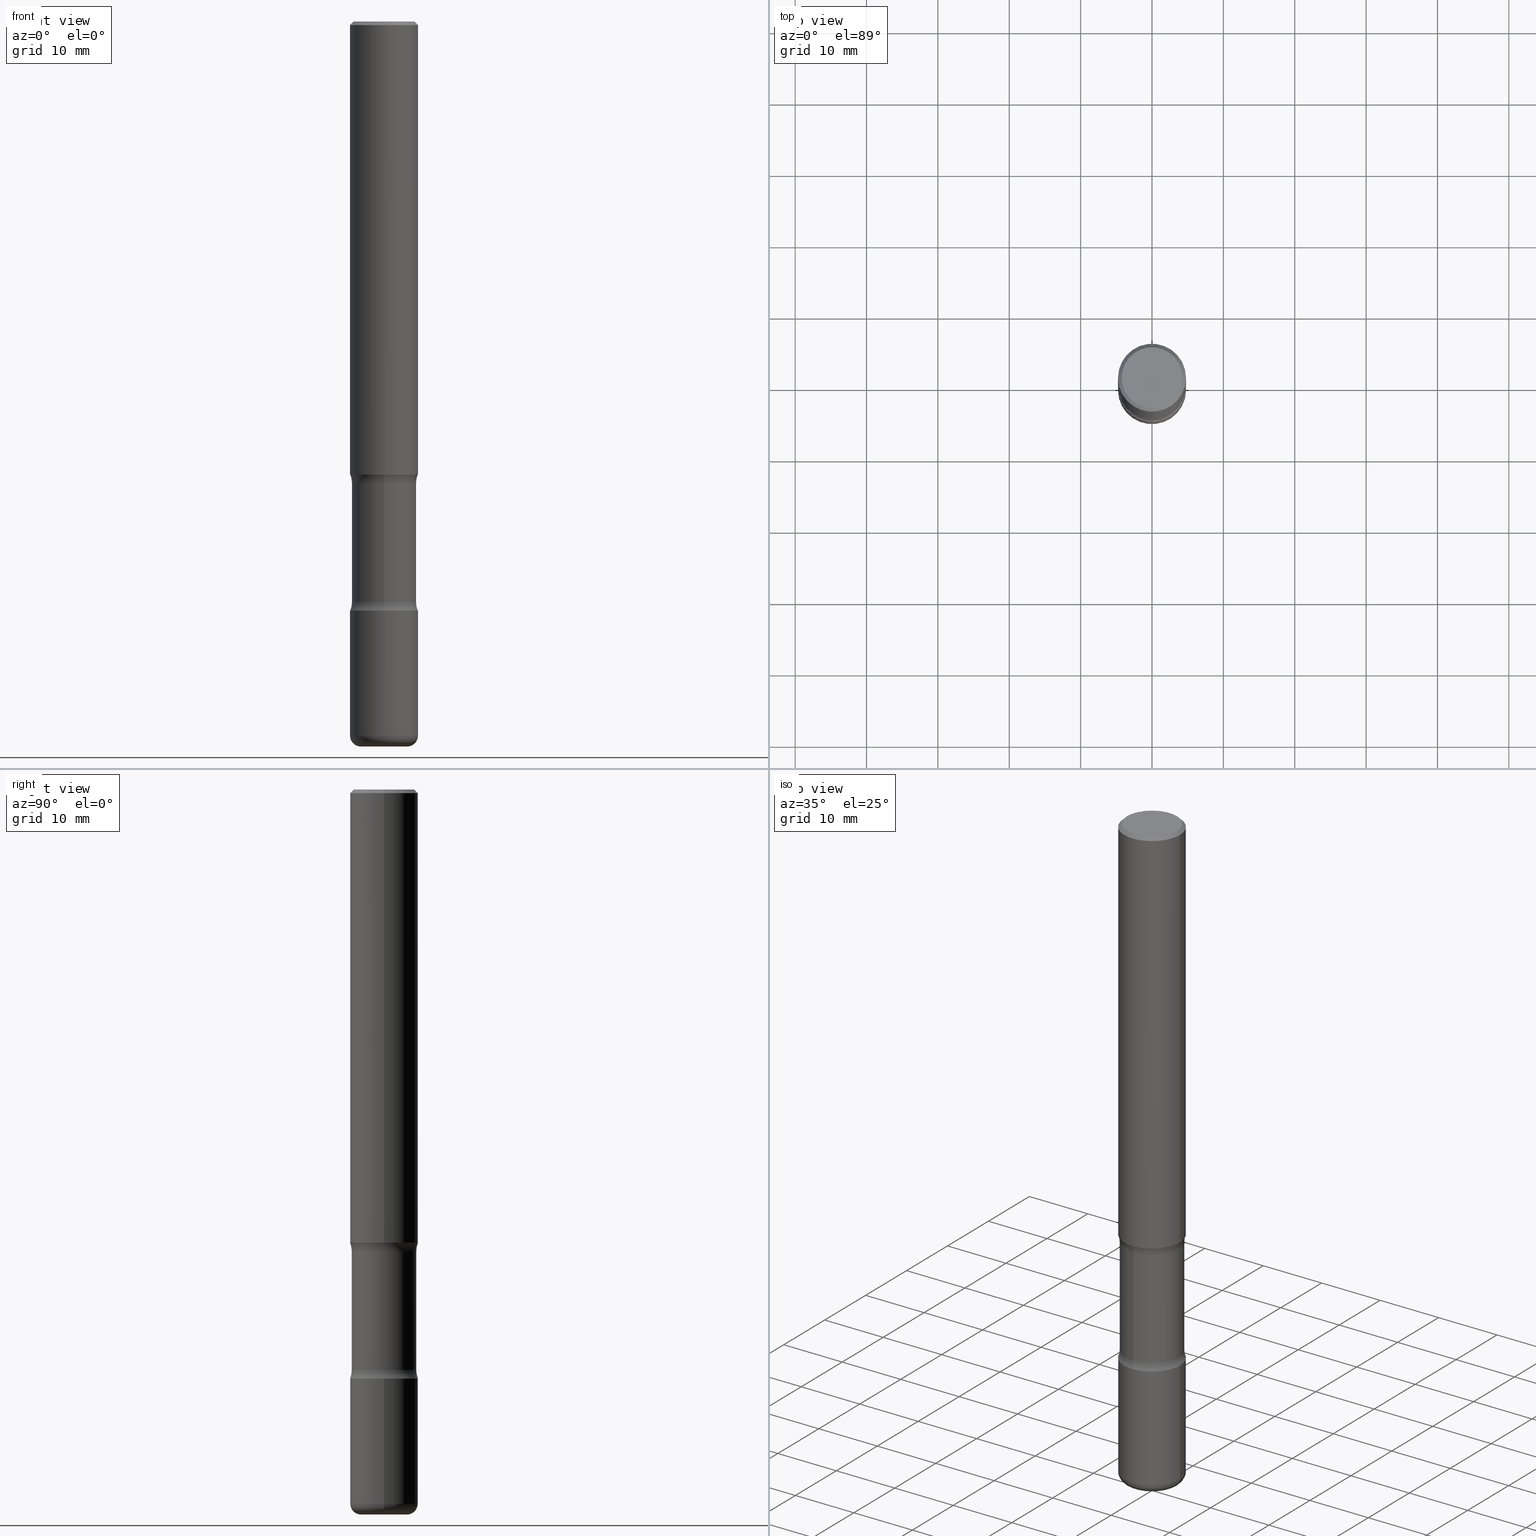
[diagram: canonical four-view strip — front | top / right | iso, engineering-drawing reading convention]
A machine part, canonical four-view strip (front | top / right | iso — engineering-drawing reading convention). The complete STEP part file that produces these views, byte-faithful:
ISO-10303-21;
HEADER;
FILE_DESCRIPTION (( 'STEP AP203' ),
    '1' );
FILE_NAME ('37849.STEP',
    '2024-03-02T00:46:52',
    ( '' ),
    ( '' ),
    'SwSTEP 2.0',
    'SolidWorks 2023',
    '' );
FILE_SCHEMA (( 'CONFIG_CONTROL_DESIGN' ));
ENDSEC;

DATA;
#1 = CARTESIAN_POINT ( 'NONE',  ( -1.222026205852954821E-15, -0.1781250000000138001, -3.999999999999999556 ) ) ;
#2 = ORIENTED_EDGE ( 'NONE', *, *, #150, .T. ) ;
#3 = DIRECTION ( 'NONE',  ( -2.445468806185136597E-29, 3.491481338843145583E-15, 1.000000000000000000 ) ) ;
#4 = VERTEX_POINT ( 'NONE', #449 ) ;
#5 = CIRCLE ( 'NONE', #536, 0.1275000000000001132 ) ;
#6 = CIRCLE ( 'NONE', #519, 0.1250000000000000278 ) ;
#7 = ORIENTED_EDGE ( 'NONE', *, *, #106, .T. ) ;
#8 = CARTESIAN_POINT ( 'NONE',  ( 6.113672015462842613E-29, -8.728703347107864943E-15, -2.500000000000000000 ) ) ;
#9 = DIRECTION ( 'NONE',  ( -2.438088387897960049E-29, 3.491481338843145188E-15, 1.000000000000000000 ) ) ;
#10 = TOROIDAL_SURFACE ( 'NONE', #323, 0.3031249999999999778, 0.1250000000000000278 ) ;
#11 = CALENDAR_DATE ( 2024, 1, 3 ) ;
#12 = CARTESIAN_POINT ( 'NONE',  ( 9.781875224740546387E-29, -1.396592535537258233E-14, -4.000000000000000000 ) ) ;
#13 = ADVANCED_BREP_SHAPE_REPRESENTATION ( '37849', ( #359, #166, #177, #530 ), #537 ) ;
#14 = ORIENTED_EDGE ( 'NONE', *, *, #226, .F. ) ;
#15 = ORIENTED_EDGE ( 'NONE', *, *, #52, .F. ) ;
#16 = ADVANCED_FACE ( 'NONE', ( #222 ), #442, .F. ) ;
#17 = CARTESIAN_POINT ( 'NONE',  ( 0.000000000000000000, 0.000000000000000000, 0.000000000000000000 ) ) ;
#18 = CLOSED_SHELL ( 'NONE', ( #397, #75, #247, #92, #528, #480, #372, #515 ) ) ;
#19 = DIRECTION ( 'NONE',  ( 6.982962677686265133E-15, 1.000000000000000000, -3.067338098149349483E-15 ) ) ;
#20 = CIRCLE ( 'NONE', #483, 0.1250000000000000278 ) ;
#21 = VERTEX_POINT ( 'NONE', #310 ) ;
#22 = EDGE_CURVE ( 'NONE', #390, #213, #371, .T. ) ;
#23 = CARTESIAN_POINT ( 'NONE',  ( 6.113672015462842613E-29, -8.728703347107864943E-15, -2.500000000000000000 ) ) ;
#24 = APPLICATION_CONTEXT ( 'configuration controlled 3d designs of mechanical parts and assemblies' ) ;
#25 = UNCERTAINTY_MEASURE_WITH_UNIT (LENGTH_MEASURE( 1.000000000000000082E-05 ), #549, 'distance_accuracy_value', 'NONE');
#26 = CARTESIAN_POINT ( 'NONE',  ( 2.116710561673727694E-15, 0.3031249999999888201, -3.202504112020092997 ) ) ;
#27 = DIRECTION ( 'NONE',  ( 1.000000000000000000, -6.982962677686266711E-15, 4.876176775795935793E-29 ) ) ;
#28 = ADVANCED_FACE ( 'NONE', ( #533 ), #300, .T. ) ;
#29 = ORIENTED_EDGE ( 'NONE', *, *, #293, .T. ) ;
#30 = DIRECTION ( 'NONE',  ( 1.000000000000000000, -6.982962677686265922E-15, 4.876176775795935793E-29 ) ) ;
#31 = CARTESIAN_POINT ( 'NONE',  ( -2.079588455574433343E-15, -0.3031250000000089706, -2.547495887979907891 ) ) ;
#32 = CIRCLE ( 'NONE', #316, 0.1875000000000001388 ) ;
#33 = AXIS2_PLACEMENT_3D ( 'NONE', #107, #379, #539 ) ;
#34 = EDGE_CURVE ( 'NONE', #21, #534, #315, .T. ) ;
#35 = DIRECTION ( 'NONE',  ( 2.438088387897960049E-29, -3.491481338843145188E-15, -1.000000000000000000 ) ) ;
#36 = DIRECTION ( 'NONE',  ( 1.000000000000000000, -6.982962677686265922E-15, 4.876176775795935793E-29 ) ) ;
#37 = EDGE_CURVE ( 'NONE', #463, #108, #360, .T. ) ;
#38 = APPLICATION_PROTOCOL_DEFINITION ( 'international standard', 'config_control_design', 1994, #24 ) ;
#39 = ORIENTED_EDGE ( 'NONE', *, *, #22, .T. ) ;
#40 = PERSON_AND_ORGANIZATION ( #116, #521 ) ;
#41 = CARTESIAN_POINT ( 'NONE',  ( 9.781875224740546387E-29, -1.396592535537258233E-14, -4.000000000000000000 ) ) ;
#42 = AXIS2_PLACEMENT_3D ( 'NONE', #318, #112, #19 ) ;
#43 = LOCAL_TIME ( 19, 46, 52.00000000000000000, #100 ) ;
#44 = DIRECTION ( 'NONE',  ( 6.860497997771529985E-15, 1.000000000000000000, 0.000000000000000000 ) ) ;
#45 = PRODUCT_DEFINITION ( 'UNKNOWN', '', #103, #181 ) ;
#46 = ORIENTED_EDGE ( 'NONE', *, *, #106, .F. ) ;
#47 = CARTESIAN_POINT ( 'NONE',  ( -2.079588455574416777E-15, -0.3031250000000111355, -3.202504112020090776 ) ) ;
#48 = ORIENTED_EDGE ( 'NONE', *, *, #34, .F. ) ;
#49 = COORDINATED_UNIVERSAL_TIME_OFFSET ( 5, 0, .BEHIND. ) ;
#50 = VERTEX_POINT ( 'NONE', #489 ) ;
#51 = ORIENTED_EDGE ( 'NONE', *, *, #143, .F. ) ;
#52 = EDGE_CURVE ( 'NONE', #265, #50, #198, .T. ) ;
#53 = CIRCLE ( 'NONE', #86, 0.1250000000000000278 ) ;
#54 = CC_DESIGN_SECURITY_CLASSIFICATION ( #142, ( #103 ) ) ;
#55 = PERSON_AND_ORGANIZATION ( #116, #521 ) ;
#56 = CARTESIAN_POINT ( 'NONE',  ( 1.243840226962943961E-15, 0.1781249999999887368, -3.202504112020092553 ) ) ;
#57 = EDGE_LOOP ( 'NONE', ( #254, #89 ) ) ;
#58 = CARTESIAN_POINT ( 'NONE',  ( 7.947773620101696182E-29, -1.134731435124022600E-14, -3.250000000000000444 ) ) ;
#59 = AXIS2_PLACEMENT_3D ( 'NONE', #62, #312, #221 ) ;
#60 = AXIS2_PLACEMENT_3D ( 'NONE', #144, #61, #482 ) ;
#61 = DIRECTION ( 'NONE',  ( 2.558681667686983511E-29, -3.329354077496592524E-15, -1.000000000000000000 ) ) ;
#62 = CARTESIAN_POINT ( 'NONE',  ( 4.890937612370289799E-31, -6.982962677686315028E-17, -0.02000000000000006981 ) ) ;
#63 = DIRECTION ( 'NONE',  ( 2.438088387897960049E-29, -3.491481338843145188E-15, -1.000000000000000000 ) ) ;
#64 = DIRECTION ( 'NONE',  ( 1.000000000000000000, -6.860497997771530774E-15, 4.842784365940769113E-29 ) ) ;
#65 = CIRCLE ( 'NONE', #421, 0.1875000000000001110 ) ;
#66 = LOCAL_TIME ( 19, 46, 52.00000000000000000, #294 ) ;
#67 = CARTESIAN_POINT ( 'NONE',  ( 0.1275000000000001132, -1.464676421644699397E-14, -3.939999999999999947 ) ) ;
#68 = CYLINDRICAL_SURFACE ( 'NONE', #353, 0.1875000000000001110 ) ;
#69 = ORIENTED_EDGE ( 'NONE', *, *, #500, .F. ) ;
#70 = DIRECTION ( 'NONE',  ( 1.000000000000000000, -6.982962677686273021E-15, 0.000000000000000000 ) ) ;
#71 = EDGE_CURVE ( 'NONE', #299, #238, #5, .T. ) ;
#72 = DIRECTION ( 'NONE',  ( 1.000000000000000000, -6.982962677686266711E-15, 4.876176775795935793E-29 ) ) ;
#73 = CARTESIAN_POINT ( 'NONE',  ( -0.1875000000000000833, -1.121960778359092137E-14, -3.250000000000000444 ) ) ;
#74 = VECTOR ( 'NONE', #512, 39.37007874015748143 ) ;
#75 = ADVANCED_FACE ( 'NONE', ( #535 ), #276, .F. ) ;
#76 = DIRECTION ( 'NONE',  ( -2.445468806185136597E-29, 3.491481338843145583E-15, 1.000000000000000000 ) ) ;
#77 = APPROVAL_STATUS ( 'not_yet_approved' ) ;
#78 = CARTESIAN_POINT ( 'NONE',  ( 6.028762369336457147E-29, -8.850298793117778356E-15, -2.500000000000000000 ) ) ;
#79 = EDGE_LOOP ( 'NONE', ( #365, #429, #470, #15 ) ) ;
#80 = APPROVAL_DATE_TIME ( #558, #378 ) ;
#81 = PLANE ( 'NONE',  #529 ) ;
#82 = ORIENTED_EDGE ( 'NONE', *, *, #137, .F. ) ;
#83 = PERSON_AND_ORGANIZATION ( #116, #521 ) ;
#84 = CARTESIAN_POINT ( 'NONE',  ( 0.1875000000000001110, -1.506574197710817060E-14, -3.939999999999999947 ) ) ;
#85 = ORIENTED_EDGE ( 'NONE', *, *, #220, .F. ) ;
#86 = AXIS2_PLACEMENT_3D ( 'NONE', #31, #64, #496 ) ;
#87 = DIRECTION ( 'NONE',  ( 0.000000000000000000, 0.000000000000000000, 1.000000000000000000 ) ) ;
#88 = FACE_OUTER_BOUND ( 'NONE', #227, .T. ) ;
#89 = ORIENTED_EDGE ( 'NONE', *, *, #52, .T. ) ;
#90 = DATE_TIME_ROLE ( 'creation_date' ) ;
#91 = ORIENTED_EDGE ( 'NONE', *, *, #37, .F. ) ;
#92 = ADVANCED_FACE ( 'NONE', ( #183 ), #343, .F. ) ;
#93 = DIRECTION ( 'NONE',  ( -2.445468806185136597E-29, 3.491481338843145583E-15, 1.000000000000000000 ) ) ;
#94 = APPROVAL ( #401, 'UNSPECIFIED' ) ;
#95 = AXIS2_PLACEMENT_3D ( 'NONE', #295, #301, #476 ) ;
#96 = AXIS2_PLACEMENT_3D ( 'NONE', #456, #320, #229 ) ;
#97 = DATE_AND_TIME ( #11, #253 ) ;
#98 = LINE ( 'NONE', #182, #224 ) ;
#99 = ORIENTED_EDGE ( 'NONE', *, *, #416, .T. ) ;
#100 = COORDINATED_UNIVERSAL_TIME_OFFSET ( 5, 0, .BEHIND. ) ;
#101 = ORIENTED_EDGE ( 'NONE', *, *, #297, .T. ) ;
#102 = AXIS2_PLACEMENT_3D ( 'NONE', #405, #104, #352 ) ;
#103 = PRODUCT_DEFINITION_FORMATION_WITH_SPECIFIED_SOURCE ( 'ANY', '', #504, .NOT_KNOWN. ) ;
#104 = DIRECTION ( 'NONE',  ( 2.558681667686983511E-29, -3.329354077496592524E-15, -1.000000000000000000 ) ) ;
#105 = FACE_OUTER_BOUND ( 'NONE', #57, .T. ) ;
#106 = EDGE_CURVE ( 'NONE', #336, #4, #65, .T. ) ;
#107 = CARTESIAN_POINT ( 'NONE',  ( -0.1275000000000001132, -1.285049448694786508E-14, -3.939999999999999947 ) ) ;
#108 = VERTEX_POINT ( 'NONE', #56 ) ;
#109 = DIRECTION ( 'NONE',  ( 6.982962677686265922E-15, 1.000000000000000000, -3.329354077496592524E-15 ) ) ;
#110 = PRODUCT_DEFINITION_SHAPE ( 'NONE', 'NONE',  #45 ) ;
#111 = CIRCLE ( 'NONE', #361, 0.1874999999999999167 ) ;
#112 = DIRECTION ( 'NONE',  ( 2.558681667686983511E-29, -3.329354077496592524E-15, -1.000000000000000000 ) ) ;
#113 = AXIS2_PLACEMENT_3D ( 'NONE', #495, #119, #465 ) ;
#114 = LENGTH_MEASURE_WITH_UNIT ( LENGTH_MEASURE( 0.02539999999999999897 ), #204 );
#115 = DIRECTION ( 'NONE',  ( -2.445468806185136597E-29, 3.491481338843145583E-15, 1.000000000000000000 ) ) ;
#116 = PERSON ( 'UNSPECIFIED', 'UNSPECIFIED', 'UNSPECIFIED', ('UNSPECIFIED'), ('UNSPECIFIED'), ('UNSPECIFIED') ) ;
#117 = CARTESIAN_POINT ( 'NONE',  ( 1.309305502066236145E-15, 0.1874999999999913125, -2.500000000000000444 ) ) ;
#118 = DIRECTION ( 'NONE',  ( 6.982962677686266711E-15, 1.000000000000000000, -3.329354077496592130E-15 ) ) ;
#119 = DIRECTION ( 'NONE',  ( 2.558681667686983511E-29, -3.329354077496592524E-15, -1.000000000000000000 ) ) ;
#120 = CARTESIAN_POINT ( 'NONE',  ( 0.000000000000000000, 0.000000000000000000, 0.000000000000000000 ) ) ;
#121 = CIRCLE ( 'NONE', #230, 0.1875000000000001110 ) ;
#122 = DIRECTION ( 'NONE',  ( 1.000000000000000000, -6.860497997771530774E-15, 4.842784365940769113E-29 ) ) ;
#123 = ORIENTED_EDGE ( 'NONE', *, *, #416, .F. ) ;
#124 = DIRECTION ( 'NONE',  ( 2.558681667686983511E-29, -3.329354077496592524E-15, -1.000000000000000000 ) ) ;
#125 = CARTESIAN_POINT ( 'NONE',  ( -0.1674999999999998990, 1.204561061900880061E-15, -8.301862719484106184E-30 ) ) ;
#126 = ORIENTED_EDGE ( 'NONE', *, *, #307, .F. ) ;
#127 = VECTOR ( 'NONE', #134, 39.37007874015748143 ) ;
#128 = CIRCLE ( 'NONE', #135, 0.1781249999999999223 ) ;
#129 = CIRCLE ( 'NONE', #557, 0.1875000000000001388 ) ;
#130 = VERTEX_POINT ( 'NONE', #219 ) ;
#131 = PERSON_AND_ORGANIZATION ( #116, #521 ) ;
#132 = EDGE_CURVE ( 'NONE', #213, #534, #180, .T. ) ;
#133 = VERTEX_POINT ( 'NONE', #485 ) ;
#134 = DIRECTION ( 'NONE',  ( 2.558681667686983511E-29, -3.329354077496592524E-15, -1.000000000000000000 ) ) ;
#135 = AXIS2_PLACEMENT_3D ( 'NONE', #367, #544, #380 ) ;
#136 = CARTESIAN_POINT ( 'NONE',  ( 7.947773620101696182E-29, -1.134731435124022600E-14, -3.250000000000000444 ) ) ;
#137 = EDGE_CURVE ( 'NONE', #4, #21, #98, .T. ) ;
#138 = PERSON_AND_ORGANIZATION_ROLE ( 'design_supplier' ) ;
#139 = CARTESIAN_POINT ( 'NONE',  ( 1.243840226962964471E-15, 0.1781249999999861278, -4.000000000000000888 ) ) ;
#140 = ORIENTED_EDGE ( 'NONE', *, *, #346, .T. ) ;
#141 = TOROIDAL_SURFACE ( 'NONE', #464, 0.1275000000000001132, 0.05999999999999996309 ) ;
#142 = SECURITY_CLASSIFICATION ( '', '', #351 ) ;
#143 = EDGE_CURVE ( 'NONE', #486, #130, #188, .T. ) ;
#144 = CARTESIAN_POINT ( 'NONE',  ( 7.831623907624765469E-29, -1.118148334468659010E-14, -3.202504112020091664 ) ) ;
#145 = CARTESIAN_POINT ( 'NONE',  ( -1.254184790217529307E-15, -0.1781250000000111355, -3.202504112020091220 ) ) ;
#146 = EDGE_CURVE ( 'NONE', #213, #390, #290, .T. ) ;
#147 = EDGE_LOOP ( 'NONE', ( #7, #509, #345, #162 ) ) ;
#148 = DIRECTION ( 'NONE',  ( -2.445468806185136597E-29, 3.491481338843145583E-15, 1.000000000000000000 ) ) ;
#149 = CARTESIAN_POINT ( 'NONE',  ( 6.150289227201164007E-29, -9.008429421428009851E-15, -2.547495887979908780 ) ) ;
#150 = EDGE_CURVE ( 'NONE', #282, #108, #241, .T. ) ;
#151 = EDGE_LOOP ( 'NONE', ( #358, #303, #250, #123 ) ) ;
#152 = CLOSED_SHELL ( 'NONE', ( #471, #284, #399, #339, #205, #277 ) ) ;
#153 = VECTOR ( 'NONE', #414, 39.37007874015748143 ) ;
#154 = CARTESIAN_POINT ( 'NONE',  ( -0.1875000000000001110, 1.332267629550188637E-15, -9.223003294227953596E-30 ) ) ;
#155 = CARTESIAN_POINT ( 'NONE',  ( 0.000000000000000000, 0.000000000000000000, 0.000000000000000000 ) ) ;
#156 = CARTESIAN_POINT ( 'NONE',  ( 0.000000000000000000, 0.000000000000000000, 0.000000000000000000 ) ) ;
#157 = EDGE_LOOP ( 'NONE', ( #481, #427, #99, #477 ) ) ;
#158 = CARTESIAN_POINT ( 'NONE',  ( 7.947773620101696182E-29, -1.134731435124022600E-14, -3.250000000000000444 ) ) ;
#159 = FACE_OUTER_BOUND ( 'NONE', #147, .T. ) ;
#160 = LINE ( 'NONE', #214, #441 ) ;
#161 = AXIS2_PLACEMENT_3D ( 'NONE', #287, #538, #491 ) ;
#162 = ORIENTED_EDGE ( 'NONE', *, *, #297, .F. ) ;
#163 = CIRCLE ( 'NONE', #354, 0.1250000000000000278 ) ;
#164 =( NAMED_UNIT ( * ) SI_UNIT ( $, .STERADIAN. ) SOLID_ANGLE_UNIT ( ) );
#165 = COORDINATED_UNIVERSAL_TIME_OFFSET ( 5, 0, .BEHIND. ) ;
#166 = MANIFOLD_SOLID_BREP ( 'Body-Move/Copy2[2]', #487 ) ;
#167 = DIRECTION ( 'NONE',  ( 6.982962677686266711E-15, 1.000000000000000000, -2.913971193241878794E-15 ) ) ;
#168 = EDGE_LOOP ( 'NONE', ( #473, #523, #2, #373 ) ) ;
#169 = FACE_OUTER_BOUND ( 'NONE', #381, .T. ) ;
#170 = EDGE_LOOP ( 'NONE', ( #355, #542, #69, #207 ) ) ;
#171 = EDGE_CURVE ( 'NONE', #175, #265, #460, .T. ) ;
#172 = DIRECTION ( 'NONE',  ( 1.000000000000000000, 0.000000000000000000, 0.000000000000000000 ) ) ;
#173 = DATE_AND_TIME ( #394, #431 ) ;
#174 = CYLINDRICAL_SURFACE ( 'NONE', #279, 0.1781249999999999500 ) ;
#175 = VERTEX_POINT ( 'NONE', #203 ) ;
#176 = VECTOR ( 'NONE', #308, 39.37007874015748143 ) ;
#177 = MANIFOLD_SOLID_BREP ( 'Body-Move/Copy2[4]', #18 ) ;
#178 = ORIENTED_EDGE ( 'NONE', *, *, #143, .T. ) ;
#179 = DATE_AND_TIME ( #356, #498 ) ;
#180 = LINE ( 'NONE', #398, #176 ) ;
#181 = DESIGN_CONTEXT ( 'detailed design', #24, 'design' ) ;
#182 = CARTESIAN_POINT ( 'NONE',  ( -0.1875000000000000278, 1.332267629550188046E-15, -9.223003294227947991E-30 ) ) ;
#183 = FACE_OUTER_BOUND ( 'NONE', #494, .T. ) ;
#184 = EDGE_CURVE ( 'NONE', #463, #133, #546, .T. ) ;
#185 = ORIENTED_EDGE ( 'NONE', *, *, #500, .T. ) ;
#186 = EDGE_CURVE ( 'NONE', #238, #299, #302, .T. ) ;
#187 = DIRECTION ( 'NONE',  ( 1.000000000000000000, -6.982962677686265922E-15, 0.000000000000000000 ) ) ;
#188 = CIRCLE ( 'NONE', #510, 0.1875000000000000833 ) ;
#189 = CC_DESIGN_PERSON_AND_ORGANIZATION_ASSIGNMENT ( #40, #258, ( #504 ) ) ;
#190 = DIRECTION ( 'NONE',  ( 1.000000000000000000, -6.982962677686269866E-15, 0.000000000000000000 ) ) ;
#191 = VERTEX_POINT ( 'NONE', #200 ) ;
#192 = DIRECTION ( 'NONE',  ( 1.000000000000000000, -6.982962677686267499E-15, 0.000000000000000000 ) ) ;
#193 = CARTESIAN_POINT ( 'NONE',  ( 9.635147096369438236E-29, -1.375643647504199401E-14, -3.939999999999999947 ) ) ;
#194 = FACE_OUTER_BOUND ( 'NONE', #322, .T. ) ;
#195 = DIRECTION ( 'NONE',  ( 2.558681667686983511E-29, -3.329354077496592524E-15, -1.000000000000000000 ) ) ;
#196 = EDGE_LOOP ( 'NONE', ( #419, #51, #444, #392 ) ) ;
#197 = CYLINDRICAL_SURFACE ( 'NONE', #113, 0.1781249999999999500 ) ;
#198 = CIRCLE ( 'NONE', #240, 0.1875000000000000833 ) ;
#199 = VECTOR ( 'NONE', #281, 39.37007874015748143 ) ;
#200 = CARTESIAN_POINT ( 'NONE',  ( -1.286343374582102609E-15, -0.1875000000000089651, -2.499999999999999556 ) ) ;
#201 = ORIENTED_EDGE ( 'NONE', *, *, #467, .T. ) ;
#202 = FACE_OUTER_BOUND ( 'NONE', #396, .T. ) ;
#203 = CARTESIAN_POINT ( 'NONE',  ( -0.1875000000000001110, -1.242416884549180617E-14, -3.939999999999999947 ) ) ;
#204 =( LENGTH_UNIT ( ) NAMED_UNIT ( * ) SI_UNIT ( $, .METRE. ) );
#205 = ADVANCED_FACE ( 'NONE', ( #275 ), #68, .T. ) ;
#206 = CYLINDRICAL_SURFACE ( 'NONE', #209, 0.1875000000000000278 ) ;
#207 = ORIENTED_EDGE ( 'NONE', *, *, #488, .F. ) ;
#208 = DIRECTION ( 'NONE',  ( -1.000000000000000000, 6.982962677686265922E-15, -4.876176775795935793E-29 ) ) ;
#209 = AXIS2_PLACEMENT_3D ( 'NONE', #435, #3, #469 ) ;
#210 = EDGE_LOOP ( 'NONE', ( #458, #327, #257, #384 ) ) ;
#211 = AXIS2_PLACEMENT_3D ( 'NONE', #158, #382, #324 ) ;
#212 = DIRECTION ( 'NONE',  ( 2.558681667686983511E-29, -3.329354077496592524E-15, -1.000000000000000000 ) ) ;
#213 = VERTEX_POINT ( 'NONE', #237 ) ;
#214 = CARTESIAN_POINT ( 'NONE',  ( 0.1875000000000001110, -1.309305502066175797E-15, 9.142831454617385217E-30 ) ) ;
#215 = EDGE_LOOP ( 'NONE', ( #560, #304, #29, #272 ) ) ;
#216 = PERSON_AND_ORGANIZATION ( #116, #521 ) ;
#217 = ORIENTED_EDGE ( 'NONE', *, *, #71, .F. ) ;
#218 = AXIS2_PLACEMENT_3D ( 'NONE', #550, #115, #552 ) ;
#219 = CARTESIAN_POINT ( 'NONE',  ( -1.286343374582083282E-15, -0.1875000000000114075, -3.250000000000000000 ) ) ;
#220 = EDGE_CURVE ( 'NONE', #108, #282, #128, .T. ) ;
#221 = DIRECTION ( 'NONE',  ( -1.000000000000000000, 6.982962677686265922E-15, 0.000000000000000000 ) ) ;
#222 = FACE_OUTER_BOUND ( 'NONE', #548, .T. ) ;
#223 = AXIS2_PLACEMENT_3D ( 'NONE', #17, #446, #314 ) ;
#224 = VECTOR ( 'NONE', #531, 39.37007874015748143 ) ;
#225 = CONICAL_SURFACE ( 'NONE', #344, 0.1874999999999999167, 0.7853981633974472798 ) ;
#226 = EDGE_CURVE ( 'NONE', #133, #191, #53, .T. ) ;
#227 = EDGE_LOOP ( 'NONE', ( #82, #306, #101, #48 ) ) ;
#228 = DIRECTION ( 'NONE',  ( -1.000000000000000000, 6.982962677686265922E-15, -4.876176775795935793E-29 ) ) ;
#229 = DIRECTION ( 'NONE',  ( -6.982962677686265922E-15, -1.000000000000000000, 3.329354077496592524E-15 ) ) ;
#230 = AXIS2_PLACEMENT_3D ( 'NONE', #23, #386, #249 ) ;
#231 = CIRCLE ( 'NONE', #511, 0.05999999999999995615 ) ;
#232 = DIRECTION ( 'NONE',  ( -1.000000000000000000, 6.982962677686265922E-15, -4.883557194083112901E-29 ) ) ;
#233 = DIRECTION ( 'NONE',  ( -6.982962677686266711E-15, -1.000000000000000000, 3.491481338843145583E-15 ) ) ;
#234 = EDGE_CURVE ( 'NONE', #50, #265, #252, .T. ) ;
#235 = DIRECTION ( 'NONE',  ( 1.000000000000000000, -6.982962677686265922E-15, 0.000000000000000000 ) ) ;
#236 = CYLINDRICAL_SURFACE ( 'NONE', #362, 0.1875000000000001110 ) ;
#237 = CARTESIAN_POINT ( 'NONE',  ( 0.1674999999999998990, -1.252653207992877500E-15, 8.469775550109235181E-30 ) ) ;
#238 = VERTEX_POINT ( 'NONE', #285 ) ;
#239 =( NAMED_UNIT ( * ) PLANE_ANGLE_UNIT ( ) SI_UNIT ( $, .RADIAN. ) );
#240 = AXIS2_PLACEMENT_3D ( 'NONE', #58, #269, #402 ) ;
#241 = CIRCLE ( 'NONE', #42, 0.1781249999999999223 ) ;
#242 = DIRECTION ( 'NONE',  ( -6.982962677686267499E-15, -1.000000000000000000, 0.000000000000000000 ) ) ;
#243 = EDGE_CURVE ( 'NONE', #534, #21, #111, .T. ) ;
#244 = PLANE ( 'NONE',  #271 ) ;
#245 = DIRECTION ( 'NONE',  ( 2.558681667686983511E-29, -3.329354077496592524E-15, -1.000000000000000000 ) ) ;
#246 = ORIENTED_EDGE ( 'NONE', *, *, #293, .F. ) ;
#247 = ADVANCED_FACE ( 'NONE', ( #273 ), #10, .F. ) ;
#248 = PERSON_AND_ORGANIZATION_ROLE ( 'creator' ) ;
#249 = DIRECTION ( 'NONE',  ( 1.000000000000000000, -6.982962677686263555E-15, 0.000000000000000000 ) ) ;
#250 = ORIENTED_EDGE ( 'NONE', *, *, #243, .T. ) ;
#251 = LINE ( 'NONE', #340, #74 ) ;
#252 = CIRCLE ( 'NONE', #218, 0.1875000000000000833 ) ;
#253 = LOCAL_TIME ( 19, 46, 52.00000000000000000, #49 ) ;
#254 = ORIENTED_EDGE ( 'NONE', *, *, #234, .T. ) ;
#255 = DIRECTION ( 'NONE',  ( -2.445468806185136597E-29, 3.491481338843145583E-15, 1.000000000000000000 ) ) ;
#256 = EDGE_CURVE ( 'NONE', #175, #296, #262, .T. ) ;
#257 = ORIENTED_EDGE ( 'NONE', *, *, #488, .T. ) ;
#258 = PERSON_AND_ORGANIZATION_ROLE ( 'design_owner' ) ;
#259 = ORIENTED_EDGE ( 'NONE', *, *, #184, .F. ) ;
#260 = PERSON_AND_ORGANIZATION_ROLE ( 'classification_officer' ) ;
#261 = DIRECTION ( 'NONE',  ( 1.000000000000000000, -6.982962677686263555E-15, 0.000000000000000000 ) ) ;
#262 = CIRCLE ( 'NONE', #161, 0.1875000000000001388 ) ;
#263 = EDGE_CURVE ( 'NONE', #133, #463, #448, .T. ) ;
#264 = APPROVAL_STATUS ( 'not_yet_approved' ) ;
#265 = VERTEX_POINT ( 'NONE', #73 ) ;
#266 = EDGE_CURVE ( 'NONE', #463, #440, #6, .T. ) ;
#267 = DIRECTION ( 'NONE',  ( 1.000000000000000000, -6.982962677686265922E-15, 4.876176775795935793E-29 ) ) ;
#268 = DATE_TIME_ROLE ( 'classification_date' ) ;
#269 = DIRECTION ( 'NONE',  ( -2.445468806185136597E-29, 3.491481338843145583E-15, 1.000000000000000000 ) ) ;
#270 = TOROIDAL_SURFACE ( 'NONE', #453, 0.1275000000000001132, 0.05999999999999996309 ) ;
#271 = AXIS2_PLACEMENT_3D ( 'NONE', #375, #501, #109 ) ;
#272 = ORIENTED_EDGE ( 'NONE', *, *, #266, .F. ) ;
#273 = FACE_OUTER_BOUND ( 'NONE', #215, .T. ) ;
#274 = CARTESIAN_POINT ( 'NONE',  ( 4.890937612370289799E-31, -6.982962677686315028E-17, -0.02000000000000006981 ) ) ;
#275 = FACE_OUTER_BOUND ( 'NONE', #79, .T. ) ;
#276 = TOROIDAL_SURFACE ( 'NONE', #60, 0.3031249999999999778, 0.1250000000000000278 ) ;
#277 = ADVANCED_FACE ( 'NONE', ( #105 ), #450, .F. ) ;
#278 = CARTESIAN_POINT ( 'NONE',  ( 0.1874999999999999167, -1.356173001359024677E-15, -0.02000000000000006981 ) ) ;
#279 = AXIS2_PLACEMENT_3D ( 'NONE', #389, #335, #298 ) ;
#280 = CC_DESIGN_APPROVAL ( #94, ( #103 ) ) ;
#281 = DIRECTION ( 'NONE',  ( -2.445468806185136877E-29, 3.491481338843145188E-15, 1.000000000000000000 ) ) ;
#282 = VERTEX_POINT ( 'NONE', #145 ) ;
#283 = FACE_OUTER_BOUND ( 'NONE', #436, .T. ) ;
#284 = ADVANCED_FACE ( 'NONE', ( #493 ), #270, .T. ) ;
#285 = CARTESIAN_POINT ( 'NONE',  ( -0.1275000000000001132, -1.274207610638512978E-14, -4.000000000000000000 ) ) ;
#286 = CARTESIAN_POINT ( 'NONE',  ( 1.169646248512448806E-15, 0.1674999999999998990, -5.848231242562264739E-16 ) ) ;
#287 = CARTESIAN_POINT ( 'NONE',  ( 9.635147096369438236E-29, -1.375643647504199401E-14, -3.939999999999999947 ) ) ;
#288 = EDGE_CURVE ( 'NONE', #4, #336, #121, .T. ) ;
#289 = FACE_OUTER_BOUND ( 'NONE', #434, .T. ) ;
#290 = CIRCLE ( 'NONE', #490, 0.1674999999999998990 ) ;
#291 = DIRECTION ( 'NONE',  ( 1.000000000000000000, -6.982962677686269866E-15, 4.883557194083114022E-29 ) ) ;
#292 = CC_DESIGN_APPROVAL ( #378, ( #45 ) ) ;
#293 = EDGE_CURVE ( 'NONE', #191, #440, #32, .T. ) ;
#294 = COORDINATED_UNIVERSAL_TIME_OFFSET ( 5, 0, .BEHIND. ) ;
#295 = CARTESIAN_POINT ( 'NONE',  ( 7.831623907624765469E-29, -1.118148334468659010E-14, -3.202504112020091664 ) ) ;
#296 = VERTEX_POINT ( 'NONE', #84 ) ;
#297 = EDGE_CURVE ( 'NONE', #336, #534, #251, .T. ) ;
#298 = DIRECTION ( 'NONE',  ( 6.982962677686266711E-15, 1.000000000000000000, -3.067338098149349089E-15 ) ) ;
#299 = VERTEX_POINT ( 'NONE', #428 ) ;
#300 = CONICAL_SURFACE ( 'NONE', #59, 0.1874999999999999167, 0.7853981633974472798 ) ;
#301 = DIRECTION ( 'NONE',  ( 2.558681667686983511E-29, -3.329354077496592524E-15, -1.000000000000000000 ) ) ;
#302 = CIRCLE ( 'NONE', #374, 0.1275000000000001132 ) ;
#303 = ORIENTED_EDGE ( 'NONE', *, *, #132, .T. ) ;
#304 = ORIENTED_EDGE ( 'NONE', *, *, #226, .T. ) ;
#305 = DATE_AND_TIME ( #309, #43 ) ;
#306 = ORIENTED_EDGE ( 'NONE', *, *, #288, .T. ) ;
#307 = EDGE_CURVE ( 'NONE', #440, #191, #409, .T. ) ;
#308 = DIRECTION ( 'NONE',  ( 0.7071067811865467956, -7.319954787623254468E-15, -0.7071067811865482389 ) ) ;
#309 = CALENDAR_DATE ( 2024, 1, 3 ) ;
#310 = CARTESIAN_POINT ( 'NONE',  ( -0.1874999999999999167, 1.239475875289311118E-15, -0.02000000000000006981 ) ) ;
#311 = APPLICATION_CONTEXT ( 'configuration controlled 3d designs of mechanical parts and assemblies' ) ;
#312 = DIRECTION ( 'NONE',  ( 2.445468806185136597E-29, -3.491481338843145583E-15, -1.000000000000000000 ) ) ;
#313 = CC_DESIGN_PERSON_AND_ORGANIZATION_ASSIGNMENT ( #522, #138, ( #103 ) ) ;
#314 = DIRECTION ( 'NONE',  ( 1.000000000000000000, -6.982962677686265922E-15, 4.876176775795935793E-29 ) ) ;
#315 = CIRCLE ( 'NONE', #545, 0.1874999999999999167 ) ;
#316 = AXIS2_PLACEMENT_3D ( 'NONE', #78, #212, #167 ) ;
#317 = DIRECTION ( 'NONE',  ( -2.445468806185136597E-29, 3.491481338843145583E-15, 1.000000000000000000 ) ) ;
#318 = CARTESIAN_POINT ( 'NONE',  ( 7.826246762236988201E-29, -1.118918372292999451E-14, -3.202504112020091664 ) ) ;
#319 = EDGE_LOOP ( 'NONE', ( #185, #525, #518, #514 ) ) ;
#320 = DIRECTION ( 'NONE',  ( -2.558681667686982950E-29, 3.329354077496592524E-15, 1.000000000000000000 ) ) ;
#321 = CARTESIAN_POINT ( 'NONE',  ( 9.781875224740546387E-29, -1.396592535537258233E-14, -4.000000000000000000 ) ) ;
#322 = EDGE_LOOP ( 'NONE', ( #126, #246 ) ) ;
#323 = AXIS2_PLACEMENT_3D ( 'NONE', #364, #505, #118 ) ;
#324 = DIRECTION ( 'NONE',  ( 6.982962677686266711E-15, 1.000000000000000000, -2.913971193241879583E-15 ) ) ;
#325 = APPROVAL_PERSON_ORGANIZATION ( #216, #404, #347 ) ;
#326 = DIRECTION ( 'NONE',  ( 6.982962677686266711E-15, 1.000000000000000000, -3.067338098149349089E-15 ) ) ;
#327 = ORIENTED_EDGE ( 'NONE', *, *, #186, .T. ) ;
#328 = CARTESIAN_POINT ( 'NONE',  ( 1.243840226962927197E-15, 0.1781249999999909572, -2.547495887979909224 ) ) ;
#329 = DIRECTION ( 'NONE',  ( 6.982962677686266711E-15, 1.000000000000000000, -2.913971193241879583E-15 ) ) ;
#330 = DIRECTION ( 'NONE',  ( -1.000000000000000000, 6.982962677686265922E-15, -4.876176775795935793E-29 ) ) ;
#331 = CARTESIAN_POINT ( 'NONE',  ( 9.635147096369438236E-29, -1.375643647504199401E-14, -3.939999999999999947 ) ) ;
#332 = CARTESIAN_POINT ( 'NONE',  ( 9.635147096369438236E-29, -1.375643647504199401E-14, -3.939999999999999947 ) ) ;
#333 = AXIS2_PLACEMENT_3D ( 'NONE', #406, #9, #267 ) ;
#334 = TOROIDAL_SURFACE ( 'NONE', #95, 0.3031249999999999778, 0.1250000000000000278 ) ;
#335 = DIRECTION ( 'NONE',  ( 2.558681667686983511E-29, -3.329354077496592524E-15, -1.000000000000000000 ) ) ;
#336 = VERTEX_POINT ( 'NONE', #559 ) ;
#337 = DIRECTION ( 'NONE',  ( 1.000000000000000000, -6.982962677686269866E-15, 4.883557194083114022E-29 ) ) ;
#338 = ORIENTED_EDGE ( 'NONE', *, *, #186, .F. ) ;
#339 = ADVANCED_FACE ( 'NONE', ( #426 ), #141, .T. ) ;
#340 = CARTESIAN_POINT ( 'NONE',  ( 0.1875000000000000278, -1.309305502066175008E-15, 9.142831454617381013E-30 ) ) ;
#341 = ORIENTED_EDGE ( 'NONE', *, *, #146, .T. ) ;
#342 = DIRECTION ( 'NONE',  ( 2.438088387897960049E-29, -3.491481338843145188E-15, -1.000000000000000000 ) ) ;
#343 = TOROIDAL_SURFACE ( 'NONE', #102, 0.3031249999999999778, 0.1250000000000000278 ) ;
#344 = AXIS2_PLACEMENT_3D ( 'NONE', #274, #424, #543 ) ;
#345 = ORIENTED_EDGE ( 'NONE', *, *, #243, .F. ) ;
#346 = EDGE_CURVE ( 'NONE', #133, #282, #517, .T. ) ;
#347 = APPROVAL_ROLE ( '' ) ;
#348 = ORIENTED_EDGE ( 'NONE', *, *, #37, .T. ) ;
#349 = CC_DESIGN_PERSON_AND_ORGANIZATION_ASSIGNMENT ( #55, #479, ( #103 ) ) ;
#350 = DIRECTION ( 'NONE',  ( -2.445468806185136597E-29, 3.491481338843145583E-15, 1.000000000000000000 ) ) ;
#351 = SECURITY_CLASSIFICATION_LEVEL ( 'unclassified' ) ;
#352 = DIRECTION ( 'NONE',  ( 6.982962677686266711E-15, 1.000000000000000000, -3.329354077496592130E-15 ) ) ;
#353 = AXIS2_PLACEMENT_3D ( 'NONE', #156, #376, #27 ) ;
#354 = AXIS2_PLACEMENT_3D ( 'NONE', #26, #366, #417 ) ;
#355 = ORIENTED_EDGE ( 'NONE', *, *, #71, .T. ) ;
#356 = CALENDAR_DATE ( 2024, 1, 3 ) ;
#357 = EDGE_CURVE ( 'NONE', #130, #282, #20, .T. ) ;
#358 = ORIENTED_EDGE ( 'NONE', *, *, #146, .F. ) ;
#359 = MANIFOLD_SOLID_BREP ( 'Body-Move/Copy2[1]', #152 ) ;
#360 = LINE ( 'NONE', #139, #127 ) ;
#361 = AXIS2_PLACEMENT_3D ( 'NONE', #457, #452, #235 ) ;
#362 = AXIS2_PLACEMENT_3D ( 'NONE', #155, #76, #72 ) ;
#363 = EDGE_CURVE ( 'NONE', #296, #50, #160, .T. ) ;
#364 = CARTESIAN_POINT ( 'NONE',  ( 6.158285255761511137E-29, -8.996978653423909512E-15, -2.547495887979908780 ) ) ;
#365 = ORIENTED_EDGE ( 'NONE', *, *, #171, .F. ) ;
#366 = DIRECTION ( 'NONE',  ( -1.000000000000000000, 6.982962677686265922E-15, -4.883557194083112901E-29 ) ) ;
#367 = CARTESIAN_POINT ( 'NONE',  ( 7.826246762236988201E-29, -1.118918372292999451E-14, -3.202504112020091664 ) ) ;
#368 = CC_DESIGN_PERSON_AND_ORGANIZATION_ASSIGNMENT ( #83, #248, ( #45 ) ) ;
#369 = FACE_OUTER_BOUND ( 'NONE', #157, .T. ) ;
#370 = CARTESIAN_POINT ( 'NONE',  ( 2.116710561673711128E-15, 0.3031249999999910405, -2.547495887979910112 ) ) ;
#371 = CIRCLE ( 'NONE', #223, 0.1674999999999998990 ) ;
#372 = ADVANCED_FACE ( 'NONE', ( #513 ), #334, .F. ) ;
#373 = ORIENTED_EDGE ( 'NONE', *, *, #438, .F. ) ;
#374 = AXIS2_PLACEMENT_3D ( 'NONE', #321, #502, #190 ) ;
#375 = CARTESIAN_POINT ( 'NONE',  ( 6.113672015462842613E-29, -8.728703347107864943E-15, -2.500000000000000000 ) ) ;
#376 = DIRECTION ( 'NONE',  ( -2.445468806185136597E-29, 3.491481338843145583E-15, 1.000000000000000000 ) ) ;
#377 = EDGE_LOOP ( 'NONE', ( #217, #338 ) ) ;
#378 = APPROVAL ( #77, 'UNSPECIFIED' ) ;
#379 = DIRECTION ( 'NONE',  ( 7.105427357601001859E-15, 1.000000000000000000, -3.491481338843145583E-15 ) ) ;
#380 = DIRECTION ( 'NONE',  ( 6.982962677686265133E-15, 1.000000000000000000, -3.067338098149349483E-15 ) ) ;
#381 = EDGE_LOOP ( 'NONE', ( #553, #140, #85, #91 ) ) ;
#382 = DIRECTION ( 'NONE',  ( 2.558681667686983511E-29, -3.329354077496592524E-15, -1.000000000000000000 ) ) ;
#383 = FACE_OUTER_BOUND ( 'NONE', #377, .T. ) ;
#384 = ORIENTED_EDGE ( 'NONE', *, *, #256, .F. ) ;
#385 = AXIS2_PLACEMENT_3D ( 'NONE', #149, #418, #326 ) ;
#386 = DIRECTION ( 'NONE',  ( -2.445468806185136597E-29, 3.491481338843145583E-15, 1.000000000000000000 ) ) ;
#387 = APPROVAL_PERSON_ORGANIZATION ( #532, #94, #439 ) ;
#388 = ORIENTED_EDGE ( 'NONE', *, *, #307, .T. ) ;
#389 = CARTESIAN_POINT ( 'NONE',  ( 9.866784870866931853E-29, -1.384432990936266734E-14, -4.000000000000000000 ) ) ;
#390 = VERTEX_POINT ( 'NONE', #125 ) ;
#391 = DIRECTION ( 'NONE',  ( -2.445468806185136877E-29, 3.491481338843145188E-15, 1.000000000000000000 ) ) ;
#392 = ORIENTED_EDGE ( 'NONE', *, *, #220, .T. ) ;
#393 = ADVANCED_FACE ( 'NONE', ( #88 ), #206, .T. ) ;
#394 = CALENDAR_DATE ( 2024, 1, 3 ) ;
#395 = AXIS2_PLACEMENT_3D ( 'NONE', #433, #245, #472 ) ;
#396 = EDGE_LOOP ( 'NONE', ( #178, #201 ) ) ;
#397 = ADVANCED_FACE ( 'NONE', ( #169 ), #174, .T. ) ;
#398 = CARTESIAN_POINT ( 'NONE',  ( 0.1874999999999999167, -1.356173001359024677E-15, -0.02000000000000006981 ) ) ;
#399 = ADVANCED_FACE ( 'NONE', ( #383 ), #81, .T. ) ;
#400 = DIRECTION ( 'NONE',  ( -2.445468806185136597E-29, 3.491481338843145583E-15, 1.000000000000000000 ) ) ;
#401 = APPROVAL_STATUS ( 'not_yet_approved' ) ;
#402 = DIRECTION ( 'NONE',  ( 1.000000000000000000, -6.982962677686269866E-15, 0.000000000000000000 ) ) ;
#403 = AXIS2_PLACEMENT_3D ( 'NONE', #423, #415, #462 ) ;
#404 = APPROVAL ( #264, 'UNSPECIFIED' ) ;
#405 = CARTESIAN_POINT ( 'NONE',  ( 6.158285255761511137E-29, -8.996978653423909512E-15, -2.547495887979908780 ) ) ;
#406 = CARTESIAN_POINT ( 'NONE',  ( 6.113672015462842613E-29, -8.728703347107864943E-15, -2.500000000000000000 ) ) ;
#407 = ADVANCED_FACE ( 'NONE', ( #159 ), #508, .T. ) ;
#408 = CARTESIAN_POINT ( 'NONE',  ( 0.000000000000000000, 0.000000000000000000, 0.000000000000000000 ) ) ;
#409 = CIRCLE ( 'NONE', #395, 0.1875000000000001388 ) ;
#410 = ORIENTED_EDGE ( 'NONE', *, *, #346, .F. ) ;
#411 = CC_DESIGN_APPROVAL ( #404, ( #142 ) ) ;
#412 = PRODUCT_RELATED_PRODUCT_CATEGORY ( 'detail', '', ( #504 ) ) ;
#413 = CARTESIAN_POINT ( 'NONE',  ( 7.947773620101696182E-29, -1.134731435124022600E-14, -3.250000000000000444 ) ) ;
#414 = DIRECTION ( 'NONE',  ( -0.7071067811865467956, 2.468850131082249172E-15, -0.7071067811865482389 ) ) ;
#415 = DIRECTION ( 'NONE',  ( 2.558681667686983511E-29, -3.329354077496592524E-15, -1.000000000000000000 ) ) ;
#416 = EDGE_CURVE ( 'NONE', #390, #21, #503, .T. ) ;
#417 = DIRECTION ( 'NONE',  ( -6.982962677686267499E-15, -1.000000000000000000, 0.000000000000000000 ) ) ;
#418 = DIRECTION ( 'NONE',  ( 2.558681667686983511E-29, -3.329354077496592524E-15, -1.000000000000000000 ) ) ;
#419 = ORIENTED_EDGE ( 'NONE', *, *, #357, .F. ) ;
#420 = ORIENTED_EDGE ( 'NONE', *, *, #266, .T. ) ;
#421 = AXIS2_PLACEMENT_3D ( 'NONE', #8, #93, #261 ) ;
#422 = PLANE ( 'NONE',  #455 ) ;
#423 = CARTESIAN_POINT ( 'NONE',  ( 6.150289227201164007E-29, -9.008429421428009851E-15, -2.547495887979908780 ) ) ;
#424 = DIRECTION ( 'NONE',  ( 2.445468806185136597E-29, -3.491481338843145583E-15, -1.000000000000000000 ) ) ;
#425 = APPROVAL_ROLE ( '' ) ;
#426 = FACE_OUTER_BOUND ( 'NONE', #210, .T. ) ;
#427 = ORIENTED_EDGE ( 'NONE', *, *, #22, .F. ) ;
#428 = CARTESIAN_POINT ( 'NONE',  ( 0.1275000000000001132, -1.485625309677758386E-14, -4.000000000000000000 ) ) ;
#429 = ORIENTED_EDGE ( 'NONE', *, *, #256, .T. ) ;
#430 = AXIS2_PLACEMENT_3D ( 'NONE', #413, #63, #228 ) ;
#431 = LOCAL_TIME ( 19, 46, 52.00000000000000000, #526 ) ;
#432 = CC_DESIGN_DATE_AND_TIME_ASSIGNMENT ( #179, #90, ( #45 ) ) ;
#433 = CARTESIAN_POINT ( 'NONE',  ( 6.028762369336457147E-29, -8.850298793117778356E-15, -2.500000000000000000 ) ) ;
#434 = EDGE_LOOP ( 'NONE', ( #410, #454, #348, #499 ) ) ;
#435 = CARTESIAN_POINT ( 'NONE',  ( 0.000000000000000000, 0.000000000000000000, 0.000000000000000000 ) ) ;
#436 = EDGE_LOOP ( 'NONE', ( #39, #341 ) ) ;
#437 = DIMENSIONAL_EXPONENTS ( 1.000000000000000000, 0.000000000000000000, 0.000000000000000000, 0.000000000000000000, 0.000000000000000000, 0.000000000000000000, 0.000000000000000000 ) ;
#438 = EDGE_CURVE ( 'NONE', #486, #108, #163, .T. ) ;
#439 = APPROVAL_ROLE ( '' ) ;
#440 = VERTEX_POINT ( 'NONE', #117 ) ;
#441 = VECTOR ( 'NONE', #391, 39.37007874015748143 ) ;
#442 = PLANE ( 'NONE',  #333 ) ;
#443 = SHAPE_DEFINITION_REPRESENTATION ( #110, #13 ) ;
#444 = ORIENTED_EDGE ( 'NONE', *, *, #438, .T. ) ;
#445 = APPROVAL_DATE_TIME ( #173, #404 ) ;
#446 = DIRECTION ( 'NONE',  ( -2.445468806185136597E-29, 3.491481338843145583E-15, 1.000000000000000000 ) ) ;
#447 = DIRECTION ( 'NONE',  ( 1.000000000000000000, -6.982962677686269866E-15, 0.000000000000000000 ) ) ;
#448 = CIRCLE ( 'NONE', #403, 0.1781249999999999500 ) ;
#449 = CARTESIAN_POINT ( 'NONE',  ( -0.1875000000000000833, -3.066998857392172722E-15, -2.500000000000000000 ) ) ;
#450 = PLANE ( 'NONE',  #430 ) ;
#451 = ADVANCED_FACE ( 'NONE', ( #283 ), #422, .F. ) ;
#452 = DIRECTION ( 'NONE',  ( -2.445468806185136597E-29, 3.491481338843145583E-15, 1.000000000000000000 ) ) ;
#453 = AXIS2_PLACEMENT_3D ( 'NONE', #193, #540, #291 ) ;
#454 = ORIENTED_EDGE ( 'NONE', *, *, #263, .T. ) ;
#455 = AXIS2_PLACEMENT_3D ( 'NONE', #286, #35, #330 ) ;
#456 = CARTESIAN_POINT ( 'NONE',  ( 7.947773620101696182E-29, -1.134731435124022600E-14, -3.250000000000000444 ) ) ;
#457 = CARTESIAN_POINT ( 'NONE',  ( 4.890937612370289799E-31, -6.982962677686315028E-17, -0.02000000000000006981 ) ) ;
#458 = ORIENTED_EDGE ( 'NONE', *, *, #492, .F. ) ;
#459 = PLANE ( 'NONE',  #96 ) ;
#460 = LINE ( 'NONE', #154, #199 ) ;
#461 = FACE_OUTER_BOUND ( 'NONE', #319, .T. ) ;
#462 = DIRECTION ( 'NONE',  ( 6.982962677686266711E-15, 1.000000000000000000, -3.067338098149349089E-15 ) ) ;
#463 = VERTEX_POINT ( 'NONE', #328 ) ;
#464 = AXIS2_PLACEMENT_3D ( 'NONE', #331, #255, #337 ) ;
#465 = DIRECTION ( 'NONE',  ( 6.982962677686266711E-15, 1.000000000000000000, -3.067338098149349089E-15 ) ) ;
#466 = APPROVAL_PERSON_ORGANIZATION ( #507, #378, #425 ) ;
#467 = EDGE_CURVE ( 'NONE', #130, #486, #484, .T. ) ;
#468 = CALENDAR_DATE ( 2024, 1, 3 ) ;
#469 = DIRECTION ( 'NONE',  ( 1.000000000000000000, -6.982962677686265922E-15, 4.876176775795935793E-29 ) ) ;
#470 = ORIENTED_EDGE ( 'NONE', *, *, #363, .T. ) ;
#471 = ADVANCED_FACE ( 'NONE', ( #461 ), #236, .T. ) ;
#472 = DIRECTION ( 'NONE',  ( 6.982962677686266711E-15, 1.000000000000000000, -2.913971193241878794E-15 ) ) ;
#473 = ORIENTED_EDGE ( 'NONE', *, *, #467, .F. ) ;
#474 = AXIS2_PLACEMENT_3D ( 'NONE', #120, #555, #30 ) ;
#475 = CIRCLE ( 'NONE', #33, 0.05999999999999995615 ) ;
#476 = DIRECTION ( 'NONE',  ( 6.982962677686266711E-15, 1.000000000000000000, -3.329354077496592130E-15 ) ) ;
#477 = ORIENTED_EDGE ( 'NONE', *, *, #34, .T. ) ;
#478 = MECHANICAL_CONTEXT ( 'NONE', #311, 'mechanical' ) ;
#479 = PERSON_AND_ORGANIZATION_ROLE ( 'creator' ) ;
#480 = ADVANCED_FACE ( 'NONE', ( #202 ), #459, .F. ) ;
#481 = ORIENTED_EDGE ( 'NONE', *, *, #132, .F. ) ;
#482 = DIRECTION ( 'NONE',  ( 6.982962677686266711E-15, 1.000000000000000000, -3.329354077496592130E-15 ) ) ;
#483 = AXIS2_PLACEMENT_3D ( 'NONE', #47, #122, #44 ) ;
#484 = CIRCLE ( 'NONE', #211, 0.1875000000000000833 ) ;
#485 = CARTESIAN_POINT ( 'NONE',  ( -1.254184790217547253E-15, -0.1781250000000089706, -2.547495887979908336 ) ) ;
#486 = VERTEX_POINT ( 'NONE', #506 ) ;
#487 = CLOSED_SHELL ( 'NONE', ( #407, #28, #541, #451, #16, #393 ) ) ;
#488 = EDGE_CURVE ( 'NONE', #299, #296, #231, .T. ) ;
#489 = CARTESIAN_POINT ( 'NONE',  ( 0.1875000000000000833, -1.265661985330640259E-14, -3.250000000000000444 ) ) ;
#490 = AXIS2_PLACEMENT_3D ( 'NONE', #408, #317, #36 ) ;
#491 = DIRECTION ( 'NONE',  ( 1.000000000000000000, -6.982962677686267499E-15, 0.000000000000000000 ) ) ;
#492 = EDGE_CURVE ( 'NONE', #238, #175, #475, .T. ) ;
#493 = FACE_OUTER_BOUND ( 'NONE', #170, .T. ) ;
#494 = EDGE_LOOP ( 'NONE', ( #14, #259, #420, #388 ) ) ;
#495 = CARTESIAN_POINT ( 'NONE',  ( 9.866784870866931853E-29, -1.384432990936266734E-14, -4.000000000000000000 ) ) ;
#496 = DIRECTION ( 'NONE',  ( 6.860497997771532351E-15, 1.000000000000000000, 0.000000000000000000 ) ) ;
#497 = VECTOR ( 'NONE', #124, 39.37007874015748143 ) ;
#498 = LOCAL_TIME ( 19, 46, 52.00000000000000000, #165 ) ;
#499 = ORIENTED_EDGE ( 'NONE', *, *, #150, .F. ) ;
#500 = EDGE_CURVE ( 'NONE', #296, #175, #129, .T. ) ;
#501 = DIRECTION ( 'NONE',  ( 2.558681667686982950E-29, -3.329354077496592524E-15, -1.000000000000000000 ) ) ;
#502 = DIRECTION ( 'NONE',  ( -2.445468806185136597E-29, 3.491481338843145583E-15, 1.000000000000000000 ) ) ;
#503 = LINE ( 'NONE', #551, #153 ) ;
#504 = PRODUCT ( '37849', '37849', '', ( #478 ) ) ;
#505 = DIRECTION ( 'NONE',  ( 2.558681667686983511E-29, -3.329354077496592524E-15, -1.000000000000000000 ) ) ;
#506 = CARTESIAN_POINT ( 'NONE',  ( 1.309305502066255275E-15, 0.1874999999999887867, -3.250000000000001332 ) ) ;
#507 = PERSON_AND_ORGANIZATION ( #116, #521 ) ;
#508 = CYLINDRICAL_SURFACE ( 'NONE', #474, 0.1875000000000000278 ) ;
#509 = ORIENTED_EDGE ( 'NONE', *, *, #137, .T. ) ;
#510 = AXIS2_PLACEMENT_3D ( 'NONE', #136, #195, #329 ) ;
#511 = AXIS2_PLACEMENT_3D ( 'NONE', #67, #233, #70 ) ;
#512 = DIRECTION ( 'NONE',  ( -2.445468806185136877E-29, 3.491481338843145188E-15, 1.000000000000000000 ) ) ;
#513 = FACE_OUTER_BOUND ( 'NONE', #196, .T. ) ;
#514 = ORIENTED_EDGE ( 'NONE', *, *, #363, .F. ) ;
#515 = ADVANCED_FACE ( 'NONE', ( #289 ), #197, .T. ) ;
#516 = CARTESIAN_POINT ( 'NONE',  ( 0.000000000000000000, 0.000000000000000000, 0.000000000000000000 ) ) ;
#517 = LINE ( 'NONE', #1, #497 ) ;
#518 = ORIENTED_EDGE ( 'NONE', *, *, #234, .F. ) ;
#519 = AXIS2_PLACEMENT_3D ( 'NONE', #370, #232, #242 ) ;
#520 = APPLICATION_PROTOCOL_DEFINITION ( 'international standard', 'config_control_design', 1994, #311 ) ;
#521 = ORGANIZATION ( 'UNSPECIFIED', 'UNSPECIFIED', '' ) ;
#522 = PERSON_AND_ORGANIZATION ( #116, #521 ) ;
#523 = ORIENTED_EDGE ( 'NONE', *, *, #357, .T. ) ;
#524 = APPROVAL_DATE_TIME ( #97, #94 ) ;
#525 = ORIENTED_EDGE ( 'NONE', *, *, #171, .T. ) ;
#526 = COORDINATED_UNIVERSAL_TIME_OFFSET ( 5, 0, .BEHIND. ) ;
#527 = CARTESIAN_POINT ( 'NONE',  ( 4.890937612370289799E-31, -6.982962677686315028E-17, -0.02000000000000006981 ) ) ;
#528 = ADVANCED_FACE ( 'NONE', ( #194 ), #244, .F. ) ;
#529 = AXIS2_PLACEMENT_3D ( 'NONE', #41, #342, #208 ) ;
#530 = AXIS2_PLACEMENT_3D ( 'NONE', #516, #87, #172 ) ;
#531 = DIRECTION ( 'NONE',  ( -2.445468806185136877E-29, 3.491481338843145188E-15, 1.000000000000000000 ) ) ;
#532 = PERSON_AND_ORGANIZATION ( #116, #521 ) ;
#533 = FACE_OUTER_BOUND ( 'NONE', #151, .T. ) ;
#534 = VERTEX_POINT ( 'NONE', #278 ) ;
#535 = FACE_OUTER_BOUND ( 'NONE', #168, .T. ) ;
#536 = AXIS2_PLACEMENT_3D ( 'NONE', #12, #350, #447 ) ;
#537 =( GEOMETRIC_REPRESENTATION_CONTEXT ( 3 ) GLOBAL_UNCERTAINTY_ASSIGNED_CONTEXT ( ( #25 ) ) GLOBAL_UNIT_ASSIGNED_CONTEXT ( ( #549, #239, #164 ) ) REPRESENTATION_CONTEXT ( 'NONE', 'WORKASPACE' ) );
#538 = DIRECTION ( 'NONE',  ( -2.445468806185136597E-29, 3.491481338843145583E-15, 1.000000000000000000 ) ) ;
#539 = DIRECTION ( 'NONE',  ( -1.000000000000000000, 7.105427357600996337E-15, 0.000000000000000000 ) ) ;
#540 = DIRECTION ( 'NONE',  ( -2.445468806185136597E-29, 3.491481338843145583E-15, 1.000000000000000000 ) ) ;
#541 = ADVANCED_FACE ( 'NONE', ( #369 ), #225, .T. ) ;
#542 = ORIENTED_EDGE ( 'NONE', *, *, #492, .T. ) ;
#543 = DIRECTION ( 'NONE',  ( -1.000000000000000000, 6.982962677686265922E-15, 0.000000000000000000 ) ) ;
#544 = DIRECTION ( 'NONE',  ( 2.558681667686983511E-29, -3.329354077496592524E-15, -1.000000000000000000 ) ) ;
#545 = AXIS2_PLACEMENT_3D ( 'NONE', #527, #400, #187 ) ;
#546 = CIRCLE ( 'NONE', #385, 0.1781249999999999500 ) ;
#547 = CC_DESIGN_DATE_AND_TIME_ASSIGNMENT ( #305, #268, ( #142 ) ) ;
#548 = EDGE_LOOP ( 'NONE', ( #46, #556 ) ) ;
#549 =( CONVERSION_BASED_UNIT ( 'INCH', #114 ) LENGTH_UNIT ( ) NAMED_UNIT ( #437 ) );
#550 = CARTESIAN_POINT ( 'NONE',  ( 7.947773620101696182E-29, -1.134731435124022600E-14, -3.250000000000000444 ) ) ;
#551 = CARTESIAN_POINT ( 'NONE',  ( -0.1874999999999999167, 1.239475875289311118E-15, -0.02000000000000006981 ) ) ;
#552 = DIRECTION ( 'NONE',  ( 1.000000000000000000, -6.982962677686269866E-15, 0.000000000000000000 ) ) ;
#553 = ORIENTED_EDGE ( 'NONE', *, *, #184, .T. ) ;
#554 = CC_DESIGN_PERSON_AND_ORGANIZATION_ASSIGNMENT ( #131, #260, ( #142 ) ) ;
#555 = DIRECTION ( 'NONE',  ( -2.445468806185136597E-29, 3.491481338843145583E-15, 1.000000000000000000 ) ) ;
#556 = ORIENTED_EDGE ( 'NONE', *, *, #288, .F. ) ;
#557 = AXIS2_PLACEMENT_3D ( 'NONE', #332, #148, #192 ) ;
#558 = DATE_AND_TIME ( #468, #66 ) ;
#559 = CARTESIAN_POINT ( 'NONE',  ( 0.1875000000000001110, -1.003800884917403995E-14, -2.500000000000000000 ) ) ;
#560 = ORIENTED_EDGE ( 'NONE', *, *, #263, .F. ) ;
ENDSEC;
END-ISO-10303-21;
